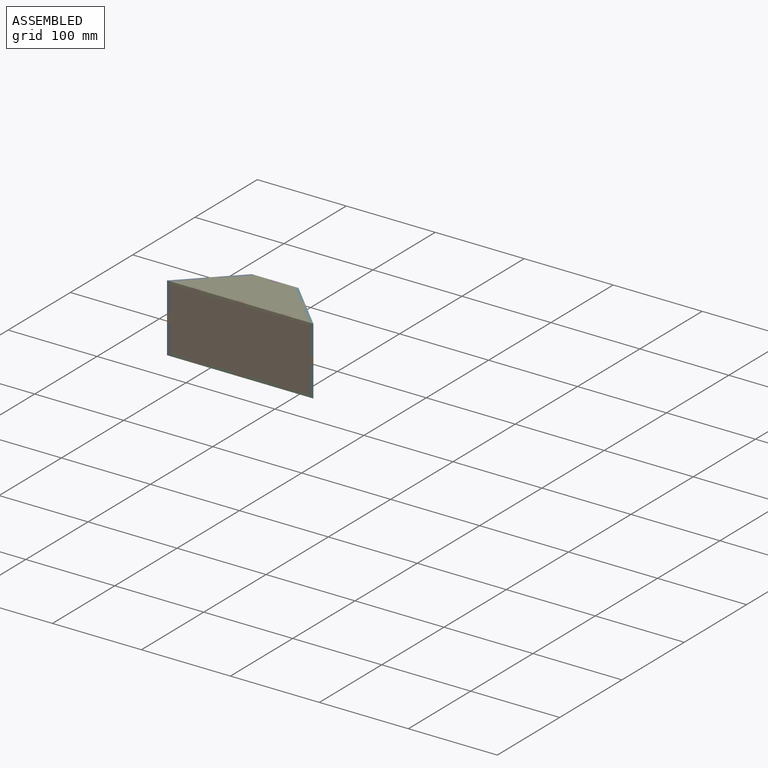
[diagram: assembled view]
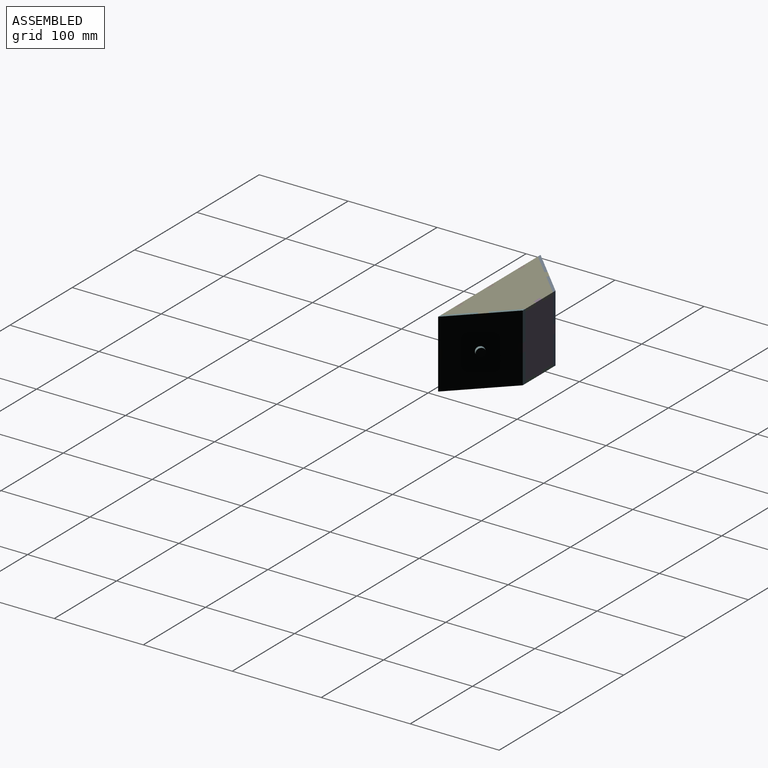
[diagram: assembled view, second angle]
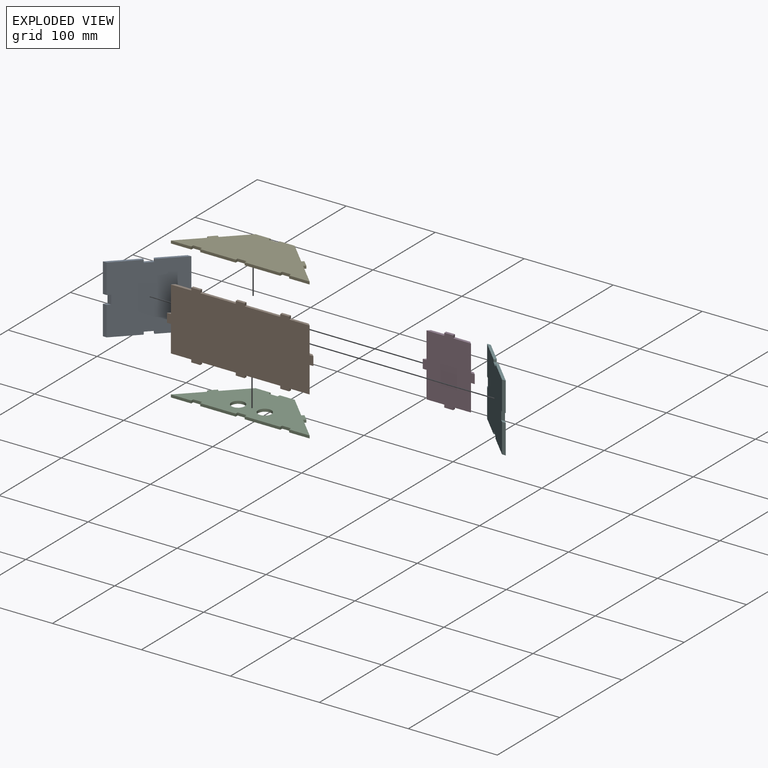
[diagram: exploded view]
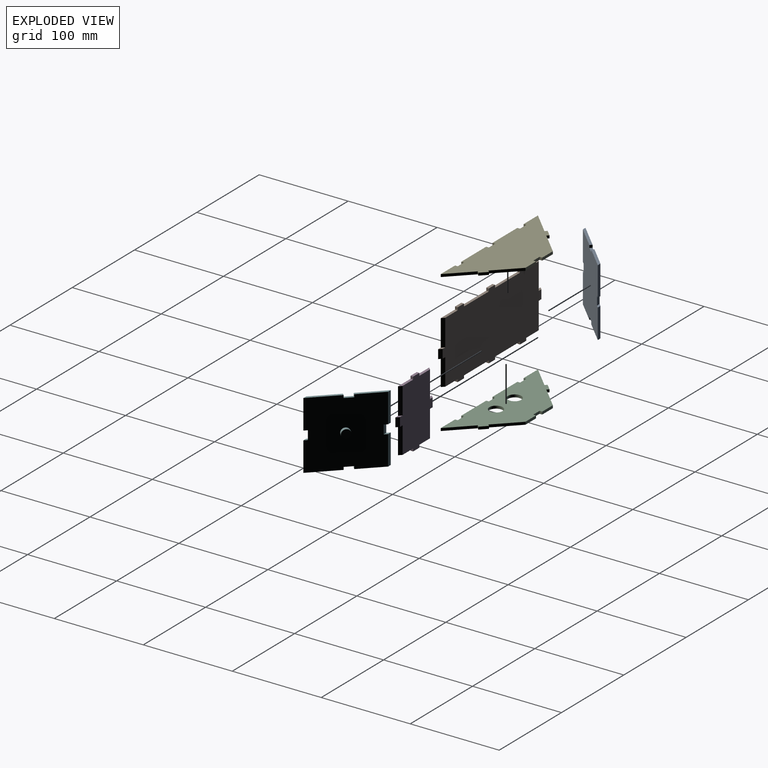
[diagram: exploded view, second angle]
ASSEMBLY  parts=6 mates=3
PART A: 24 faces, bbox 76x7x82.2 mm
  f0: plane 10x3mm, normal (1,0,0), area 30mm2, adj f1,f13,f14,f15
  f1: plane 3x3mm, normal (0,0,-1), area 9mm2, adj f0,f2,f14,f15
  f2: plane 34.6x3mm, normal (1,0,0), area 99.3mm2, adj f1,f14,f15,f18
  f3: plane 7.24x3mm, normal (-1,0,0), area 12.7mm2, adj f14,f15,f18,f19
  f4: plane 7.24x3mm, normal (1,0,0), area 12.7mm2, adj f14,f15,f19,f20
  f5: plane 34.6x3mm, normal (-1,0,0), area 99.3mm2, adj f6,f14,f15,f20
  f6: plane 3x3mm, normal (0,0,-1), area 9mm2, adj f5,f7,f14,f15
  f7: plane 10x3mm, normal (-1,0,0), area 30mm2, adj f6,f8,f14,f15
  f8: plane 3x3mm, normal (0,0,1), area 9mm2, adj f7,f9,f14,f15
  f9: plane 37.6x3mm, normal (-1,0,0), area 108.3mm2, adj f8,f14,f15,f23
  f10: plane 7.24x3mm, normal (1,0,0), area 12.7mm2, adj f14,f15,f22,f23
  f11: plane 7.24x3mm, normal (-1,0,0), area 12.7mm2, adj f14,f15,f21,f22
  f12: plane 37.6x3mm, normal (1,0,0), area 108.3mm2, adj f13,f14,f15,f21
  f13: plane 3x3mm, normal (0,0,1), area 9mm2, adj f0,f12,f14,f15
  f14: plane 79.2x76mm, normal (0,-1,0), area 5874.1mm2, adj f0,f1,f2,f3,f4,f5,f6,f7
  f15: plane 79.2x76mm, normal (0,1,0), area 5795.5mm2, adj f0,f1,f2,f3,f4,f5,f6,f7
  f16: cylinder r=5mm len=10mm, axis (0,-1,0), area 125.7mm2, adj f15,f17
  f17: plane 10x10mm, normal (0,1,0), area 78.5mm2, adj f16
  f18: plane 33x3mm, normal (0,0.71,0.71), area 140mm2, adj f2,f3,f14,f15
  f19: plane 10x3mm, normal (0,0.71,0.71), area 42.4mm2, adj f3,f4,f14,f15
  f20: plane 33x3mm, normal (0,0.71,0.71), area 140mm2, adj f4,f5,f14,f15
  f21: plane 33x3mm, normal (0,-0.71,-0.71), area 140mm2, adj f11,f12,f14,f15
  f22: plane 10x3mm, normal (0,-0.71,-0.71), area 42.4mm2, adj f10,f11,f14,f15
  f23: plane 33x3mm, normal (0,-0.71,-0.71), area 140mm2, adj f9,f10,f14,f15
PART B: 38 faces, bbox 164.5x3x76 mm
  f0: plane 23x3mm, normal (0,0,-1), area 64.5mm2, adj f1,f30,f31,f35
  f1: plane 3x3mm, normal (-1,0,0), area 9mm2, adj f0,f2,f30,f31
  f2: plane 10x3mm, normal (0,0,-1), area 30mm2, adj f1,f3,f30,f31
  f3: plane 3x3mm, normal (1,0,0), area 9mm2, adj f2,f4,f30,f31
  f4: plane 40x3mm, normal (0,0,-1), area 120mm2, adj f3,f5,f30,f31
  f5: plane 3x3mm, normal (-1,0,0), area 9mm2, adj f4,f6,f30,f31
  f6: plane 10x3mm, normal (0,0,-1), area 30mm2, adj f5,f7,f30,f31
  f7: plane 3x3mm, normal (1,0,0), area 9mm2, adj f6,f8,f30,f31
  f8: plane 40x3mm, normal (0,0,-1), area 120mm2, adj f7,f9,f30,f31
  f9: plane 3x3mm, normal (-1,0,0), area 9mm2, adj f8,f10,f30,f31
  f10: plane 10x3mm, normal (0,0,-1), area 30mm2, adj f9,f11,f30,f31
  f11: plane 3x3mm, normal (1,0,0), area 9mm2, adj f10,f12,f30,f31
  f12: plane 23x3mm, normal (0,0,-1), area 64.5mm2, adj f11,f30,f31,f32
  f13: plane 7.24x3mm, normal (0,0,-1), area 12.7mm2, adj f30,f31,f32,f33
  f14: plane 7.24x3mm, normal (0,0,1), area 12.7mm2, adj f30,f31,f33,f34
  f15: plane 23x3mm, normal (0,0,1), area 64.5mm2, adj f16,f30,f31,f34
  f16: plane 3x3mm, normal (1,0,0), area 9mm2, adj f15,f17,f30,f31
  f17: plane 10x3mm, normal (0,0,1), area 30mm2, adj f16,f18,f30,f31
  f18: plane 3x3mm, normal (-1,0,0), area 9mm2, adj f17,f19,f30,f31
  f19: plane 40x3mm, normal (0,0,1), area 120mm2, adj f18,f20,f30,f31
  f20: plane 3x3mm, normal (1,0,0), area 9mm2, adj f19,f21,f30,f31
  f21: plane 10x3mm, normal (0,0,1), area 30mm2, adj f20,f22,f30,f31
  f22: plane 3x3mm, normal (-1,0,0), area 9mm2, adj f21,f23,f30,f31
  f23: plane 40x3mm, normal (0,0,1), area 120mm2, adj f22,f24,f30,f31
  f24: plane 3x3mm, normal (1,0,0), area 9mm2, adj f23,f25,f30,f31
  f25: plane 10x3mm, normal (0,0,1), area 30mm2, adj f24,f26,f30,f31
  f26: plane 3x3mm, normal (-1,0,0), area 9mm2, adj f25,f27,f30,f31
  f27: plane 23x3mm, normal (0,0,1), area 64.5mm2, adj f26,f30,f31,f37
  f28: plane 7.24x3mm, normal (0,0,1), area 12.7mm2, adj f30,f31,f36,f37
  f29: plane 7.24x3mm, normal (0,0,-1), area 12.7mm2, adj f30,f31,f35,f36
  f30: plane 164.49x76mm, normal (0,-1,0), area 11184.9mm2, adj f0,f1,f2,f3,f4,f5,f6,f7
  f31: plane 158.49x76mm, normal (0,1,0), area 10764.9mm2, adj f0,f1,f2,f3,f4,f5,f6,f7
  f32: plane 30x3mm, normal (0.71,0.71,0), area 127.3mm2, adj f12,f13,f30,f31
  f33: plane 10x3mm, normal (0.71,0.71,0), area 42.4mm2, adj f13,f14,f30,f31
  f34: plane 30x3mm, normal (0.71,0.71,0), area 127.3mm2, adj f14,f15,f30,f31
  f35: plane 30x3mm, normal (-0.71,0.71,0), area 127.3mm2, adj f0,f29,f30,f31
  f36: plane 10x3mm, normal (-0.71,0.71,0), area 42.4mm2, adj f28,f29,f30,f31
  f37: plane 30x3mm, normal (-0.71,0.71,0), area 127.3mm2, adj f27,f28,f30,f31
PART C: 32 faces, bbox 156x3x56 mm
  f0: plane 156x56mm, normal (0,-1,0), area 5186.6mm2, adj f2,f3,f4,f5,f6,f7,f8,f9
  f1: plane 156x56mm, normal (0,1,0), area 5186.6mm2, adj f2,f3,f4,f5,f6,f7,f8,f9
  f2: plane 3x3mm, normal (1,0,0), area 9mm2, adj f0,f1,f3,f29
  f3: plane 10x3mm, normal (0,0,-1), area 30mm2, adj f0,f1,f2,f4
  f4: plane 3x3mm, normal (-1,0,0), area 9mm2, adj f0,f1,f3,f5
  f5: plane 40x3mm, normal (0,0,-1), area 120mm2, adj f0,f1,f4,f6
  f6: plane 3x3mm, normal (1,0,0), area 9mm2, adj f0,f1,f5,f7
  f7: plane 10x3mm, normal (0,0,-1), area 30mm2, adj f0,f1,f6,f8
  f8: plane 3x3mm, normal (-1,0,0), area 9mm2, adj f0,f1,f7,f9
  f9: plane 40x3mm, normal (0,0,-1), area 120mm2, adj f0,f1,f8,f10
  f10: plane 3x3mm, normal (1,0,0), area 9mm2, adj f0,f1,f9,f11
  f11: plane 10x3mm, normal (0,0,-1), area 30mm2, adj f0,f1,f10,f12
  f12: plane 3x3mm, normal (-1,0,0), area 9mm2, adj f0,f1,f11,f13
  f13: plane 23x3mm, normal (0,0,-1), area 69mm2, adj f0,f1,f12,f14
  f14: plane 24.46x24.46mm, normal (0.71,0,0.71), area 103.8mm2, adj f0,f1,f13,f15
  f15: plane 3x2.12mm, normal (0.71,0,-0.71), area 9mm2, adj f0,f1,f14,f16
  f16: plane 7.07x7.07mm, normal (0.71,0,0.71), area 30mm2, adj f0,f1,f15,f17
  f17: plane 3x2.12mm, normal (-0.71,0,0.71), area 9mm2, adj f0,f1,f16,f18
  f18: plane 24.46x24.46mm, normal (0.71,0,0.71), area 103.8mm2, adj f0,f1,f17,f19
  f19: plane 17x3mm, normal (0,0,1), area 51mm2, adj f0,f1,f18,f20
  f20: plane 3x3mm, normal (-1,0,0), area 9mm2, adj f0,f1,f19,f21
  f21: plane 10x3mm, normal (0,0,1), area 30mm2, adj f0,f1,f20,f22
  f22: plane 3x3mm, normal (1,0,0), area 9mm2, adj f0,f1,f21,f23
  f23: plane 17x3mm, normal (0,0,1), area 51mm2, adj f0,f1,f22,f24
  f24: plane 24.46x24.46mm, normal (-0.71,0,0.71), area 103.8mm2, adj f0,f1,f23,f25
  f25: plane 3x2.12mm, normal (0.71,0,0.71), area 9mm2, adj f0,f1,f24,f26
  f26: plane 7.07x7.07mm, normal (-0.71,0,0.71), area 30mm2, adj f0,f1,f25,f27
  f27: plane 3x2.12mm, normal (-0.71,0,-0.71), area 9mm2, adj f0,f1,f26,f28
  f28: plane 24.46x24.46mm, normal (-0.71,0,0.71), area 103.8mm2, adj f0,f1,f27,f29
  f29: plane 23x3mm, normal (0,0,-1), area 69mm2, adj f0,f1,f2,f28
  f30: cylinder r=7.5mm len=15mm, axis (0,1,0), area 141.4mm2, adj f0,f1
  f31: cylinder r=7.5mm len=15mm, axis (0,1,0), area 141.4mm2, adj f0,f1
PART D: 22 faces, bbox 58.5x3x76 mm
  f0: plane 7.24x3mm, normal (0,0,1), area 12.7mm2, adj f14,f15,f20,f21
  f1: plane 20x3mm, normal (0,0,1), area 55.5mm2, adj f2,f14,f15,f21
  f2: plane 3x3mm, normal (1,0,0), area 9mm2, adj f1,f3,f14,f15
  f3: plane 10x3mm, normal (0,0,1), area 30mm2, adj f2,f4,f14,f15
  f4: plane 3x3mm, normal (-1,0,0), area 9mm2, adj f3,f5,f14,f15
  f5: plane 20x3mm, normal (0,0,1), area 55.5mm2, adj f4,f14,f15,f16
  f6: plane 7.24x3mm, normal (0,0,1), area 12.7mm2, adj f14,f15,f16,f17
  f7: plane 7.24x3mm, normal (0,0,-1), area 12.7mm2, adj f14,f15,f17,f18
  f8: plane 20x3mm, normal (0,0,-1), area 55.5mm2, adj f9,f14,f15,f18
  f9: plane 3x3mm, normal (-1,0,0), area 9mm2, adj f8,f10,f14,f15
  f10: plane 10x3mm, normal (0,0,-1), area 30mm2, adj f9,f11,f14,f15
  f11: plane 3x3mm, normal (1,0,0), area 9mm2, adj f10,f12,f14,f15
  f12: plane 20x3mm, normal (0,0,-1), area 55.5mm2, adj f11,f14,f15,f19
  f13: plane 7.24x3mm, normal (0,0,-1), area 12.7mm2, adj f14,f15,f19,f20
  f14: plane 76x52.49mm, normal (0,-1,0), area 3224.9mm2, adj f0,f1,f2,f3,f4,f5,f6,f7
  f15: plane 76x58.49mm, normal (0,1,0), area 3644.9mm2, adj f0,f1,f2,f3,f4,f5,f6,f7
  f16: plane 30x3mm, normal (-0.71,-0.71,0), area 127.3mm2, adj f5,f6,f14,f15
  f17: plane 10x3mm, normal (-0.71,-0.71,0), area 42.4mm2, adj f6,f7,f14,f15
  f18: plane 30x3mm, normal (-0.71,-0.71,0), area 127.3mm2, adj f7,f8,f14,f15
  f19: plane 30x3mm, normal (0.71,-0.71,0), area 127.3mm2, adj f12,f13,f14,f15
  f20: plane 10x3mm, normal (0.71,-0.71,0), area 42.4mm2, adj f0,f13,f14,f15
  f21: plane 30x3mm, normal (0.71,-0.71,0), area 127.3mm2, adj f0,f1,f14,f15
PART E: 30 faces, bbox 156x3x56 mm
  f0: plane 3x3mm, normal (1,0,0), area 9mm2, adj f1,f27,f28,f29
  f1: plane 10x3mm, normal (0,0,-1), area 30mm2, adj f0,f2,f28,f29
  f2: plane 3x3mm, normal (-1,0,0), area 9mm2, adj f1,f3,f28,f29
  f3: plane 40x3mm, normal (0,0,-1), area 120mm2, adj f2,f4,f28,f29
  f4: plane 3x3mm, normal (1,0,0), area 9mm2, adj f3,f5,f28,f29
  f5: plane 10x3mm, normal (0,0,-1), area 30mm2, adj f4,f6,f28,f29
  f6: plane 3x3mm, normal (-1,0,0), area 9mm2, adj f5,f7,f28,f29
  f7: plane 40x3mm, normal (0,0,-1), area 120mm2, adj f6,f8,f28,f29
  f8: plane 3x3mm, normal (1,0,0), area 9mm2, adj f7,f9,f28,f29
  f9: plane 10x3mm, normal (0,0,-1), area 30mm2, adj f8,f10,f28,f29
  f10: plane 3x3mm, normal (-1,0,0), area 9mm2, adj f9,f11,f28,f29
  f11: plane 23x3mm, normal (0,0,-1), area 69mm2, adj f10,f12,f28,f29
  f12: plane 24.46x24.46mm, normal (0.71,0,0.71), area 103.8mm2, adj f11,f13,f28,f29
  f13: plane 3x2.12mm, normal (0.71,0,-0.71), area 9mm2, adj f12,f14,f28,f29
  f14: plane 7.07x7.07mm, normal (0.71,0,0.71), area 30mm2, adj f13,f15,f28,f29
  f15: plane 3x2.12mm, normal (-0.71,0,0.71), area 9mm2, adj f14,f16,f28,f29
  f16: plane 24.46x24.46mm, normal (0.71,0,0.71), area 103.8mm2, adj f15,f17,f28,f29
  f17: plane 17x3mm, normal (0,0,1), area 51mm2, adj f16,f18,f28,f29
  f18: plane 3x3mm, normal (-1,0,0), area 9mm2, adj f17,f19,f28,f29
  f19: plane 10x3mm, normal (0,0,1), area 30mm2, adj f18,f20,f28,f29
  f20: plane 3x3mm, normal (1,0,0), area 9mm2, adj f19,f21,f28,f29
  f21: plane 17x3mm, normal (0,0,1), area 51mm2, adj f20,f22,f28,f29
  f22: plane 24.46x24.46mm, normal (-0.71,0,0.71), area 103.8mm2, adj f21,f23,f28,f29
  f23: plane 3x2.12mm, normal (0.71,0,0.71), area 9mm2, adj f22,f24,f28,f29
  f24: plane 7.07x7.07mm, normal (-0.71,0,0.71), area 30mm2, adj f23,f25,f28,f29
  f25: plane 3x2.12mm, normal (-0.71,0,-0.71), area 9mm2, adj f24,f26,f28,f29
  f26: plane 24.46x24.46mm, normal (-0.71,0,0.71), area 103.8mm2, adj f25,f27,f28,f29
  f27: plane 23x3mm, normal (0,0,-1), area 69mm2, adj f0,f26,f28,f29
  f28: plane 156x56mm, normal (0,-1,0), area 5540mm2, adj f0,f1,f2,f3,f4,f5,f6,f7
  f29: plane 156x56mm, normal (0,1,0), area 5540mm2, adj f0,f1,f2,f3,f4,f5,f6,f7
PART F: same geometry as A
PLACE A rot(axis=(-0.36,0.86,0.36),98.4deg) t=(-63.67,90.86,52.44)mm
PLACE B t=(-11.54,63.74,52.44)mm fixed
PLACE C rot(axis=(-1,0,0),90deg) t=(-11.54,88.74,14.44)mm
PLACE D rot(axis=(0,0,1),180deg) t=(-11.54,113.74,52.44)mm
PLACE E rot(axis=(-1,0,0),90deg) t=(-11.54,88.74,87.44)mm
PLACE F rot(axis=(-0.36,-0.86,-0.36),98.4deg) t=(40.58,90.86,52.44)mm
MATE planar A.f6 <-> E.f23  axis (-0.71,-0.71,0) through (-59.07,93.34,88.94)mm
MATE planar C.f22 <-> D.f11  axis (1,0,0) through (-16.54,115.24,15.94)mm
MATE planar B.f24 <-> E.f2  axis (1,0,0) through (-56.54,62.24,88.94)mm
